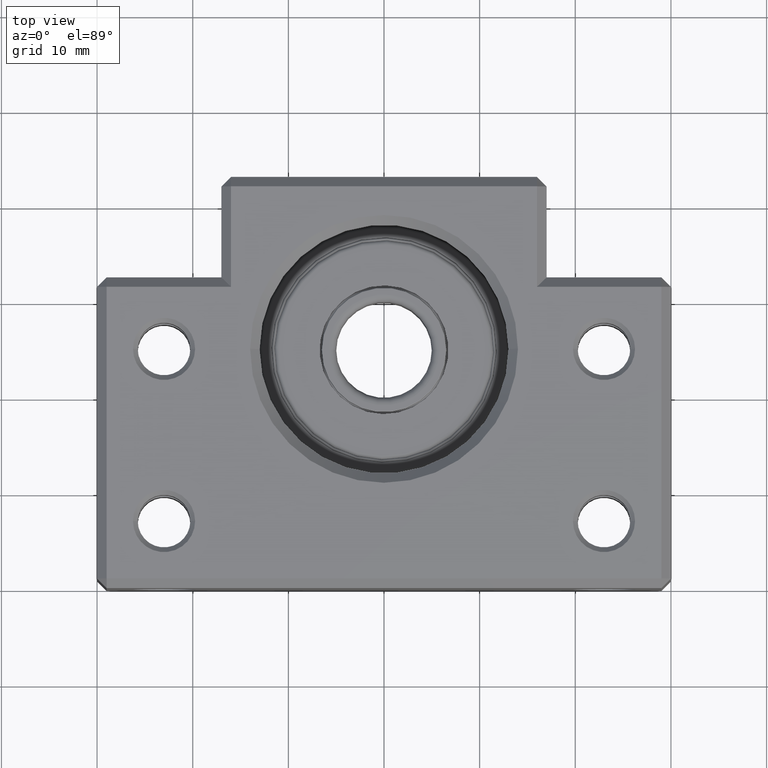
[diagram: clean part render]
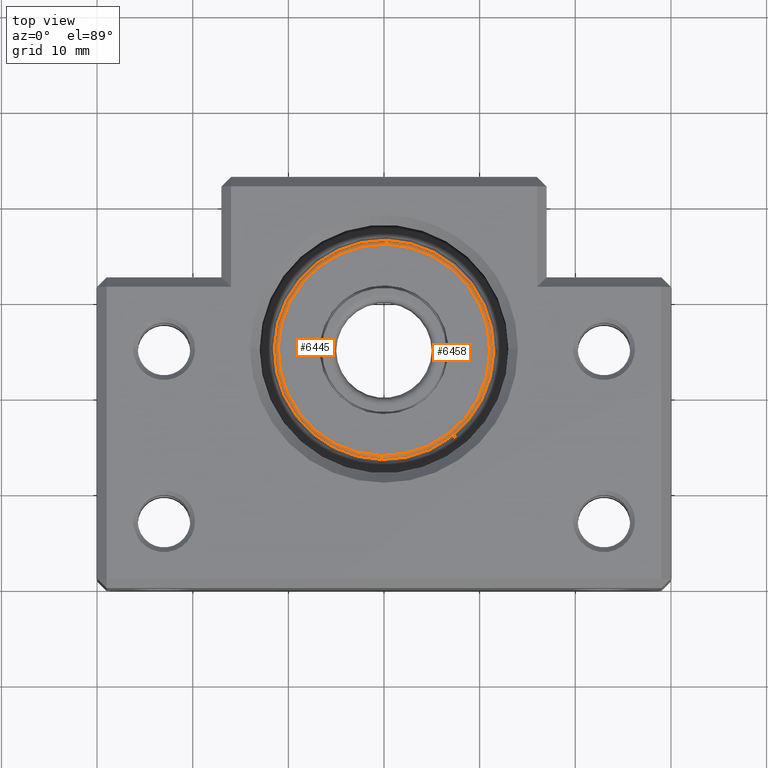
[diagram: same view with one multi-face feature highlighted, each face labeled with its STEP entity id]
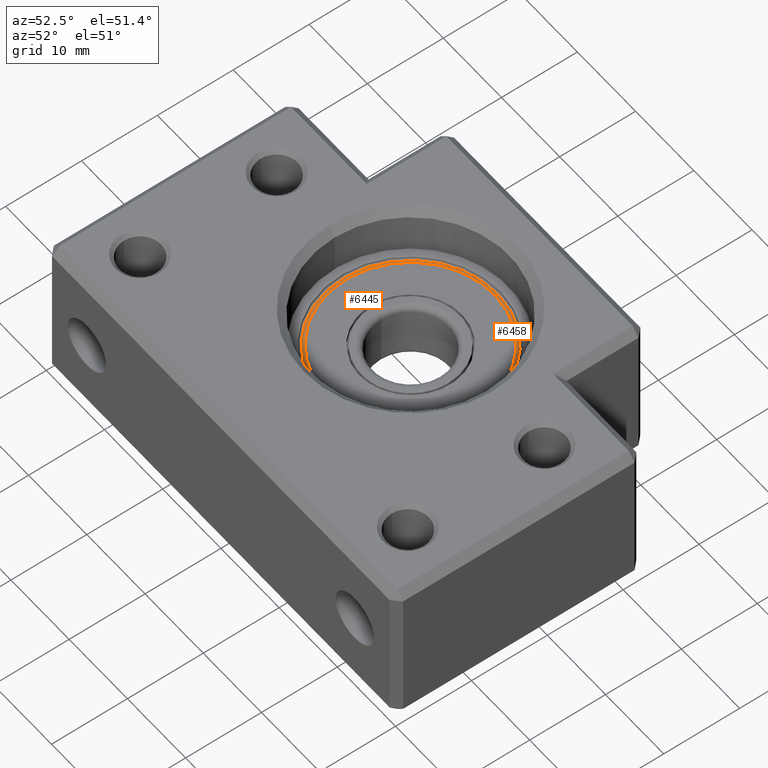
[diagram: same view with one multi-face feature highlighted, each face labeled with its STEP entity id]
A machine part, top view. The highlighted faces form ONE feature: a constant-radius fillet chain: 2 tangent blend faces with common blend radius 0.5 mm. The faces share edges in the B-rep.
A second angle (auxiliary view) of the same feature is appended — it is thin or edge-on in the first view.
Their STEP definitions:
[1] entity #6458 (Torus):
#4663 = CARTESIAN_POINT ( 'NONE',  ( -0.2659894486513753600, 13.52948110865539600, 3.669230769230781100 ) ) ;
#4711 = DIRECTION ( 'NONE',  ( -0.02318273174959941200, -0.9997312443595159900, 0.0000000000000000000 ) ) ;
#4712 = DIRECTION ( 'NONE',  ( -0.9997312443595158800, 0.02318273174959920000, -1.135662648487206800E-016 ) ) ;
#4713 = CARTESIAN_POINT ( 'NONE',  ( 0.2562219831715161800, 36.04930708059196600, 3.400000000000010100 ) ) ;
#4714 = AXIS2_PLACEMENT_3D ( 'NONE', #4713, #4712, #4711 ) ;
#4719 = CIRCLE ( 'NONE', #4714, 0.4999999999999962800 ) ;
#4727 = DIRECTION ( 'NONE',  ( 0.02318273174959935600, 0.9997312443595158800, 0.0000000000000000000 ) ) ;
#4728 = DIRECTION ( 'NONE',  ( 0.9997312443595158800, -0.02318273174959932200, 1.135662648487207100E-016 ) ) ;
#4729 = CARTESIAN_POINT ( 'NONE',  ( -0.2562219831714933100, 13.95069291940802400, 3.400000000000012800 ) ) ;
#4730 = AXIS2_PLACEMENT_3D ( 'NONE', #4729, #4728, #4727 ) ;
#4731 = CIRCLE ( 'NONE', #4730, 0.4999999999999997800 ) ;
#4768 = CARTESIAN_POINT ( 'NONE',  ( 0.2659894486513982900, 36.47051889134458900, 3.669230769230778400 ) ) ;
#4996 = CARTESIAN_POINT ( 'NONE',  ( 0.2562219831715161200, 36.04930708059196600, 3.900000000000010100 ) ) ;
#5002 = CARTESIAN_POINT ( 'NONE',  ( -0.2562219831714934200, 13.95069291940802400, 3.900000000000012800 ) ) ;
#5046 = FACE_OUTER_BOUND ( 'NONE', #6460, .T. ) ;
#5047 = AXIS2_PLACEMENT_3D ( 'NONE', #5094, #5093, #5092 ) ;
#5048 = TOROIDAL_SURFACE ( 'NONE', #5047, 11.05227744249483400, 0.4999999999999997800 ) ;
#5076 = DIRECTION ( 'NONE',  ( -0.02318273174959931800, -0.9997312443595158800, 1.133944293858356400E-016 ) ) ;
#5077 = DIRECTION ( 'NONE',  ( 1.110223024625156500E-016, -1.110223024625156500E-016, -1.000000000000000000 ) ) ;
#5078 = CARTESIAN_POINT ( 'NONE',  ( 1.208096203728785100E-014, 24.99999999999999300, 3.669230769230779700 ) ) ;
#5079 = AXIS2_PLACEMENT_3D ( 'NONE', #5078, #5077, #5076 ) ;
#5083 = CIRCLE ( 'NONE', #5079, 11.47360248672957900 ) ;
#5088 = DIRECTION ( 'NONE',  ( -0.02318273174959932200, -0.9997312443595158800, 1.177171504924617900E-016 ) ) ;
#5089 = DIRECTION ( 'NONE',  ( 1.110223024625156500E-016, -1.110223024625156500E-016, -1.000000000000000000 ) ) ;
#5090 = CARTESIAN_POINT ( 'NONE',  ( 1.205534150595034800E-014, 24.99999999999999300, 3.900000000000011900 ) ) ;
#5091 = AXIS2_PLACEMENT_3D ( 'NONE', #5090, #5089, #5088 ) ;
#5092 = DIRECTION ( 'NONE',  ( -0.02318273174959932200, -0.9997312443595158800, 1.084186643362979400E-016 ) ) ;
#5093 = DIRECTION ( 'NONE',  ( 1.110223024625156500E-016, -1.110223024625156500E-016, -1.000000000000000000 ) ) ;
#5094 = CARTESIAN_POINT ( 'NONE',  ( 1.211085265718160600E-014, 24.99999999999999300, 3.400000000000011500 ) ) ;
#5095 = CIRCLE ( 'NONE', #5091, 11.05227744249483600 ) ;
#6221 = VERTEX_POINT ( 'NONE', #4663 ) ;
#6275 = EDGE_CURVE ( 'NONE', #6439, #6221, #4731, .T. ) ;
#6283 = EDGE_CURVE ( 'NONE', #6442, #6290, #4719, .T. ) ;
#6290 = VERTEX_POINT ( 'NONE', #4768 ) ;
#6439 = VERTEX_POINT ( 'NONE', #5002 ) ;
#6442 = VERTEX_POINT ( 'NONE', #4996 ) ;
#6447 = ORIENTED_EDGE ( 'NONE', *, *, #6467, .F. ) ;
#6452 = ORIENTED_EDGE ( 'NONE', *, *, #6275, .T. ) ;
#6458 = ADVANCED_FACE ( 'NONE', ( #5046 ), #5048, .T. ) ;
#6459 = ORIENTED_EDGE ( 'NONE', *, *, #6463, .T. ) ;
#6460 = EDGE_LOOP ( 'NONE', ( #6461, #6459, #6452, #6447 ) ) ;
#6461 = ORIENTED_EDGE ( 'NONE', *, *, #6283, .F. ) ;
#6463 = EDGE_CURVE ( 'NONE', #6442, #6439, #5095, .T. ) ;
#6467 = EDGE_CURVE ( 'NONE', #6290, #6221, #5083, .T. ) ;
[2] entity #6445 (Torus):
#3682 = DIRECTION ( 'NONE',  ( 1.110223024625156500E-016, -1.110223024625156500E-016, -1.000000000000000000 ) ) ;
#3944 = DIRECTION ( 'NONE',  ( -0.02318273174959932200, -0.9997312443595158800, 1.084186643362979400E-016 ) ) ;
#4663 = CARTESIAN_POINT ( 'NONE',  ( -0.2659894486513753600, 13.52948110865539600, 3.669230769230781100 ) ) ;
#4705 = DIRECTION ( 'NONE',  ( -0.02318273174959931800, -0.9997312443595158800, 1.133944293858356400E-016 ) ) ;
#4706 = DIRECTION ( 'NONE',  ( 1.110223024625156500E-016, -1.110223024625156500E-016, -1.000000000000000000 ) ) ;
#4708 = CARTESIAN_POINT ( 'NONE',  ( 1.208096203728785100E-014, 24.99999999999999300, 3.669230769230779700 ) ) ;
#4709 = AXIS2_PLACEMENT_3D ( 'NONE', #4708, #4706, #4705 ) ;
#4710 = CIRCLE ( 'NONE', #4709, 11.47360248672957900 ) ;
#4711 = DIRECTION ( 'NONE',  ( -0.02318273174959941200, -0.9997312443595159900, 0.0000000000000000000 ) ) ;
#4712 = DIRECTION ( 'NONE',  ( -0.9997312443595158800, 0.02318273174959920000, -1.135662648487206800E-016 ) ) ;
#4713 = CARTESIAN_POINT ( 'NONE',  ( 0.2562219831715161800, 36.04930708059196600, 3.400000000000010100 ) ) ;
#4714 = AXIS2_PLACEMENT_3D ( 'NONE', #4713, #4712, #4711 ) ;
#4719 = CIRCLE ( 'NONE', #4714, 0.4999999999999962800 ) ;
#4727 = DIRECTION ( 'NONE',  ( 0.02318273174959935600, 0.9997312443595158800, 0.0000000000000000000 ) ) ;
#4728 = DIRECTION ( 'NONE',  ( 0.9997312443595158800, -0.02318273174959932200, 1.135662648487207100E-016 ) ) ;
#4729 = CARTESIAN_POINT ( 'NONE',  ( -0.2562219831714933100, 13.95069291940802400, 3.400000000000012800 ) ) ;
#4730 = AXIS2_PLACEMENT_3D ( 'NONE', #4729, #4728, #4727 ) ;
#4731 = CIRCLE ( 'NONE', #4730, 0.4999999999999997800 ) ;
#4768 = CARTESIAN_POINT ( 'NONE',  ( 0.2659894486513982900, 36.47051889134458900, 3.669230769230778400 ) ) ;
#4992 = CARTESIAN_POINT ( 'NONE',  ( 1.211085265718160600E-014, 24.99999999999999300, 3.400000000000011500 ) ) ;
#4993 = AXIS2_PLACEMENT_3D ( 'NONE', #4992, #3682, #3944 ) ;
#4994 = TOROIDAL_SURFACE ( 'NONE', #4993, 11.05227744249483400, 0.4999999999999997800 ) ;
#4995 = FACE_OUTER_BOUND ( 'NONE', #6440, .T. ) ;
#4996 = CARTESIAN_POINT ( 'NONE',  ( 0.2562219831715161200, 36.04930708059196600, 3.900000000000010100 ) ) ;
#4997 = DIRECTION ( 'NONE',  ( -0.02318273174959932200, -0.9997312443595158800, 1.177171504924617900E-016 ) ) ;
#4998 = DIRECTION ( 'NONE',  ( 1.110223024625156500E-016, -1.110223024625156500E-016, -1.000000000000000000 ) ) ;
#4999 = CARTESIAN_POINT ( 'NONE',  ( 1.205534150595034800E-014, 24.99999999999999300, 3.900000000000011900 ) ) ;
#5000 = AXIS2_PLACEMENT_3D ( 'NONE', #4999, #4998, #4997 ) ;
#5001 = CIRCLE ( 'NONE', #5000, 11.05227744249483600 ) ;
#5002 = CARTESIAN_POINT ( 'NONE',  ( -0.2562219831714934200, 13.95069291940802400, 3.900000000000012800 ) ) ;
#6221 = VERTEX_POINT ( 'NONE', #4663 ) ;
#6275 = EDGE_CURVE ( 'NONE', #6439, #6221, #4731, .T. ) ;
#6278 = ORIENTED_EDGE ( 'NONE', *, *, #6275, .F. ) ;
#6283 = EDGE_CURVE ( 'NONE', #6442, #6290, #4719, .T. ) ;
#6284 = EDGE_CURVE ( 'NONE', #6221, #6290, #4710, .T. ) ;
#6287 = ORIENTED_EDGE ( 'NONE', *, *, #6284, .F. ) ;
#6290 = VERTEX_POINT ( 'NONE', #4768 ) ;
#6437 = ORIENTED_EDGE ( 'NONE', *, *, #6441, .T. ) ;
#6439 = VERTEX_POINT ( 'NONE', #5002 ) ;
#6440 = EDGE_LOOP ( 'NONE', ( #6437, #6443, #6287, #6278 ) ) ;
#6441 = EDGE_CURVE ( 'NONE', #6439, #6442, #5001, .T. ) ;
#6442 = VERTEX_POINT ( 'NONE', #4996 ) ;
#6443 = ORIENTED_EDGE ( 'NONE', *, *, #6283, .T. ) ;
#6445 = ADVANCED_FACE ( 'NONE', ( #4995 ), #4994, .T. ) ;